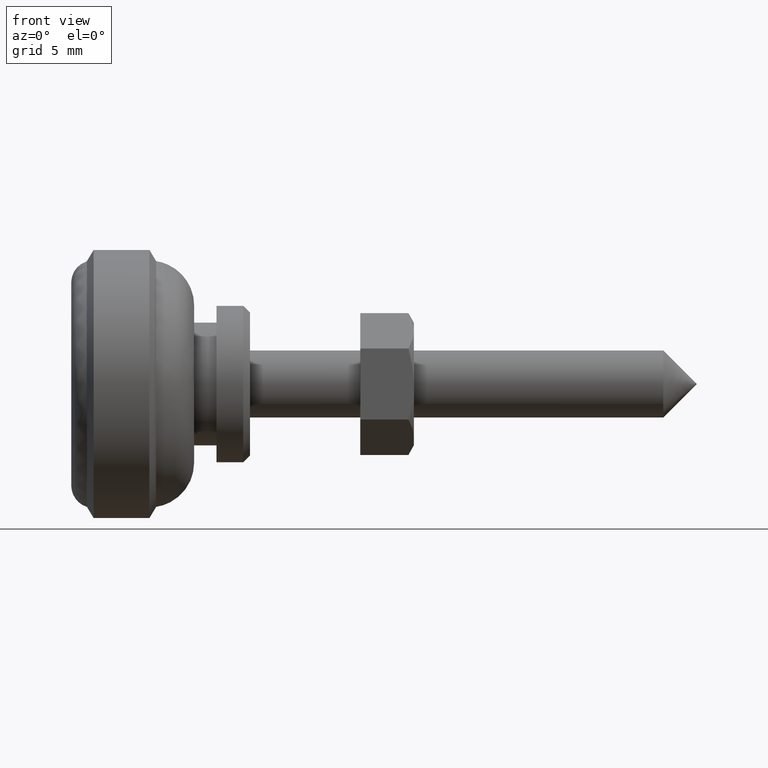
[diagram: clean part render]
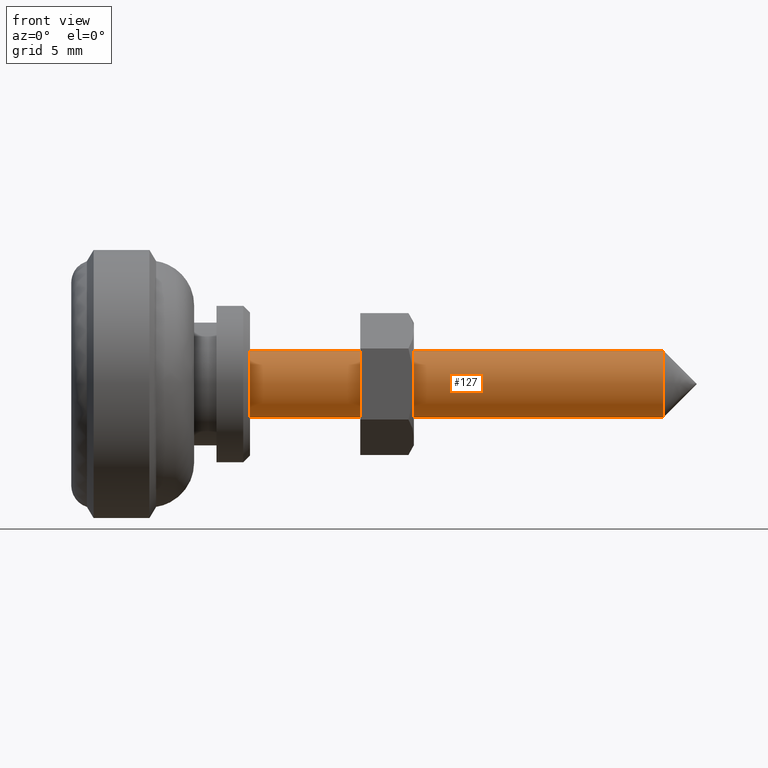
[diagram: same view with one face highlighted and labeled with its STEP entity id]
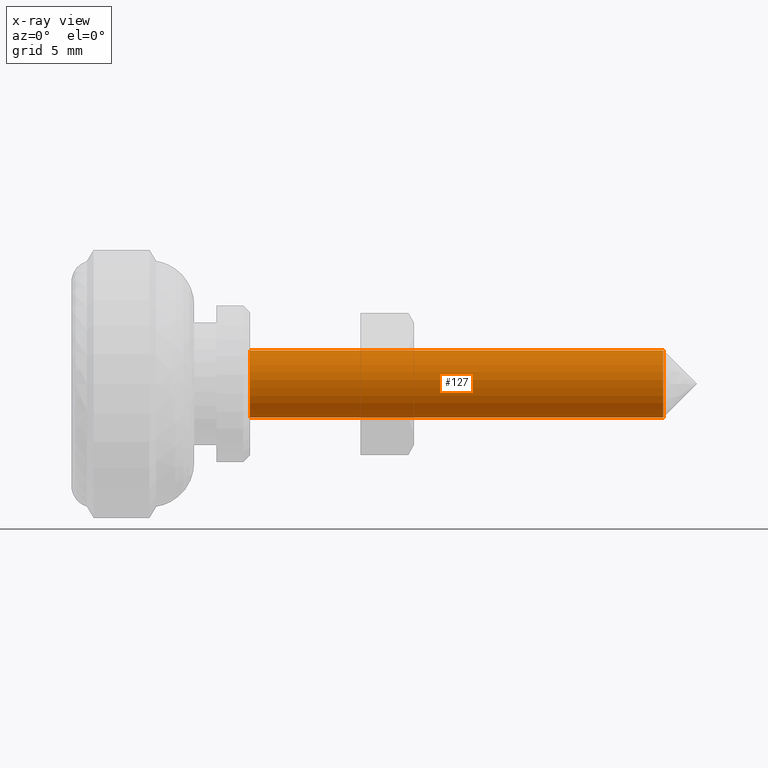
[diagram: x-ray of the same camera — body ghosted, the highlighted face saturated]
A machine part, front view. The second image highlights one B-rep face of the part: STEP entity #127.
The next image is the same camera in x-ray: the body ghosted, the highlighted face saturated — about 0% of this face is hidden behind the body in this view.
In plain terms, the highlighted cylindrical surface (edge-blend (fillet) strip) has radius 1.5 mm, axis along (1, 0, 0).
Its self-contained STEP definition (entity closure, byte-faithful):
#127=ADVANCED_FACE('',(#306),#305,.T.);
#305=CYLINDRICAL_SURFACE('',#716,1.50000000000E+00);
#306=FACE_OUTER_BOUND('',#717,.T.);
#713=CARTESIAN_POINT('',(0.00000000000E+00,0.00000000000E+00,0.00000000000E+00));
#714=DIRECTION('',(1.00000000000E+00,-0.00000000000E+00,-0.00000000000E+00));
#715=DIRECTION('',(0.00000000000E+00,0.00000000000E+00,-1.00000000000E+00));
#716=AXIS2_PLACEMENT_3D('',#713,#714,#715);
#717=EDGE_LOOP('',(#962,#963,#964,#965));
#962=ORIENTED_EDGE('',*,*,#1079,.F.);
#963=ORIENTED_EDGE('',*,*,#1108,.T.);
#964=ORIENTED_EDGE('',*,*,#1088,.T.);
#965=ORIENTED_EDGE('',*,*,#1109,.F.);
#1079=EDGE_CURVE('',#1187,#1186,#1194,.T.);
#1088=EDGE_CURVE('',#1256,#1257,#1258,.T.);
#1108=EDGE_CURVE('',#1187,#1256,#1387,.T.);
#1109=EDGE_CURVE('',#1186,#1257,#1393,.T.);
#1186=VERTEX_POINT('',#1733);
#1187=VERTEX_POINT('',#1734);
#1194=CIRCLE('',#1742,1.50000000000E+00);
#1256=VERTEX_POINT('',#1783);
#1257=VERTEX_POINT('',#1784);
#1258=CIRCLE('',#1788,1.50000000000E+00);
#1387=(BOUNDED_CURVE() B_SPLINE_CURVE(1,(#1857,#1858),.UNSPECIFIED.,.F.,.F.) B_SPLINE_CURVE_WITH_KNOTS((2,2),(8.33333328360E-02,9.16666665505E-01),.UNSPECIFIED.) CURVE() GEOMETRIC_REPRESENTATION_ITEM() RATIONAL_B_SPLINE_CURVE((1.00000000000E+00,1.00000000000E+00)) REPRESENTATION_ITEM('') );
#1393=(BOUNDED_CURVE() B_SPLINE_CURVE(1,(#1859,#1860),.UNSPECIFIED.,.F.,.F.) B_SPLINE_CURVE_WITH_KNOTS((2,2),(8.33333333333E-02,9.16666666667E-01),.UNSPECIFIED.) CURVE() GEOMETRIC_REPRESENTATION_ITEM() RATIONAL_B_SPLINE_CURVE((7.50000000000E-01,7.50000000000E-01)) REPRESENTATION_ITEM('') );
#1733=CARTESIAN_POINT('',(-2.00000000000E+01,0.00000000000E+00,1.50000000000E+00));
#1734=CARTESIAN_POINT('',(-2.00000000000E+01,-7.40148683083E-17,-1.50000000000E+00));
#1739=CARTESIAN_POINT('',(-2.00000000000E+01,0.00000000000E+00,0.00000000000E+00));
#1740=DIRECTION('',(-1.00000000000E+00,0.00000000000E+00,0.00000000000E+00));
#1741=DIRECTION('',(0.00000000000E+00,-1.22460635382E-16,1.00000000000E+00));
#1742=AXIS2_PLACEMENT_3D('',#1739,#1740,#1741);
#1783=CARTESIAN_POINT('',(-1.50000000000E+00,-7.40148683083E-17,-1.50000000000E+00));
#1784=CARTESIAN_POINT('',(-1.50000000000E+00,0.00000000000E+00,1.50000000000E+00));
#1785=CARTESIAN_POINT('',(-1.50000000000E+00,0.00000000000E+00,0.00000000000E+00));
#1786=DIRECTION('',(-1.00000000000E+00,0.00000000000E+00,0.00000000000E+00));
#1787=DIRECTION('',(0.00000000000E+00,-1.22460635382E-16,1.00000000000E+00));
#1788=AXIS2_PLACEMENT_3D('',#1785,#1786,#1787);
#1857=CARTESIAN_POINT('',(-2.00000000110E+01,0.00000000000E+00,-1.50000000000E+00));
#1858=CARTESIAN_POINT('',(-1.50000002580E+00,0.00000000000E+00,-1.50000000000E+00));
#1859=CARTESIAN_POINT('',(-2.00000000000E+01,-7.40148683083E-17,1.50000000000E+00));
#1860=CARTESIAN_POINT('',(-1.50000000000E+00,-7.40148683083E-17,1.50000000000E+00));